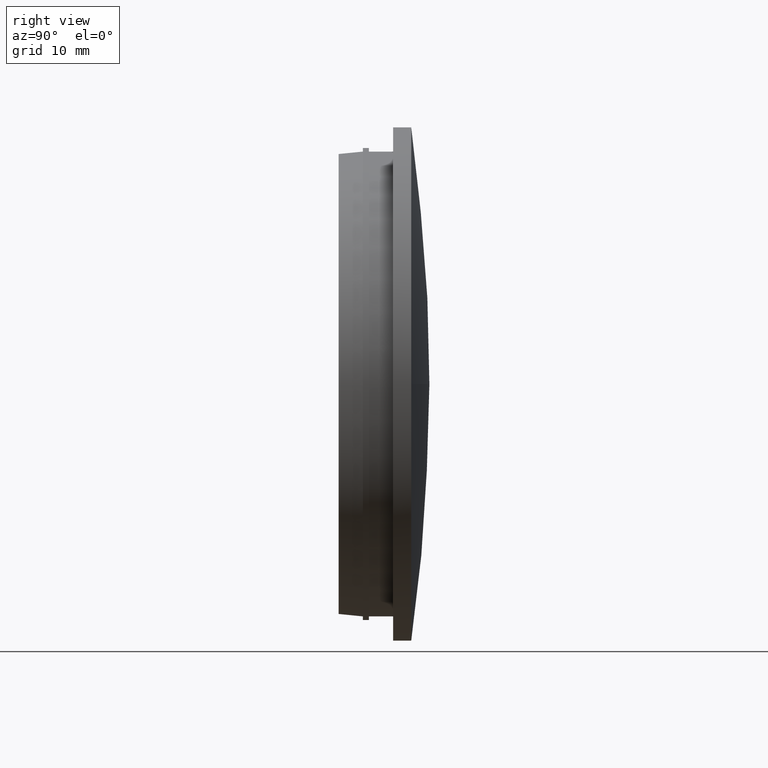
[diagram: clean part render]
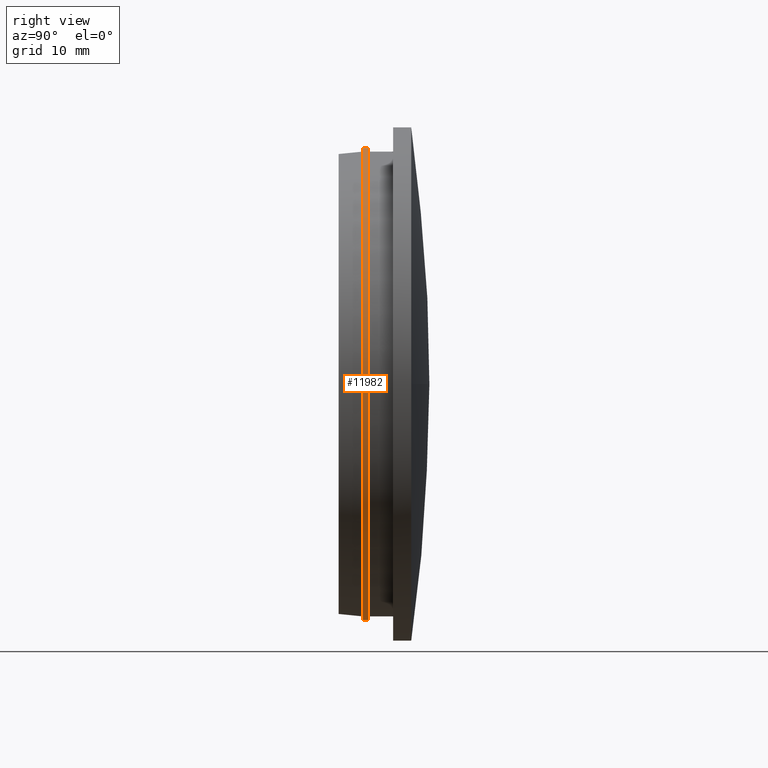
[diagram: same view with one face highlighted and labeled with its STEP entity id]
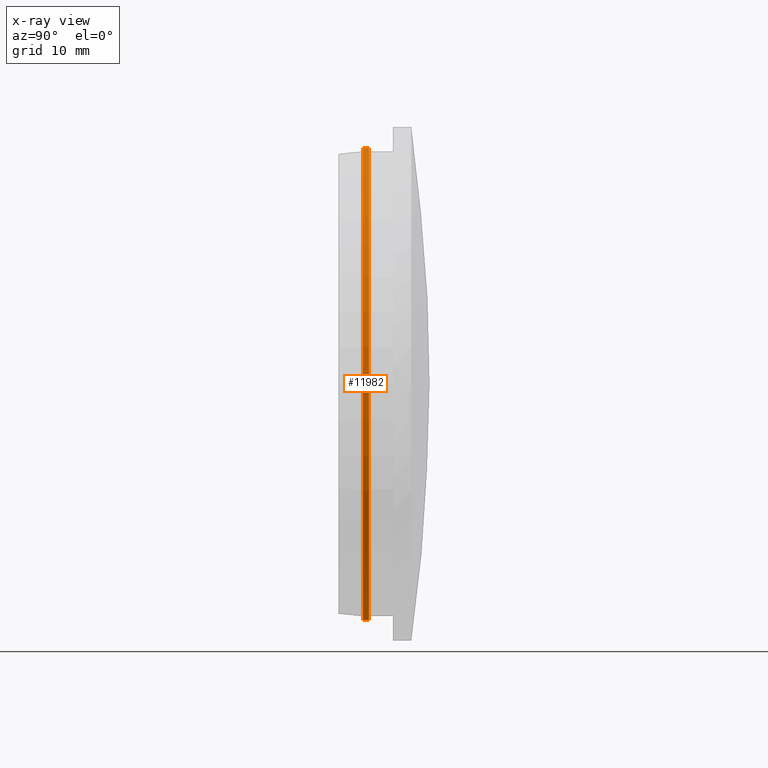
[diagram: x-ray of the same camera — body ghosted, the highlighted face saturated]
A machine part, right view. The second image highlights one B-rep face of the part: STEP entity #11982.
The next image is the same camera in x-ray: the body ghosted, the highlighted face saturated — about 0% of this face is hidden behind the body in this view.
In plain terms, the highlighted cylindrical surface (partial cylindrical patch) has radius 19.5 mm, axis along (-0, -1, -0).
Its self-contained STEP definition (entity closure, byte-faithful):
#157 = ORIENTED_EDGE ( 'NONE', *, *, #283, .F. ) ;
#215 = ORIENTED_EDGE ( 'NONE', *, *, #10236, .F. ) ;
#283 = EDGE_CURVE ( 'NONE', #9597, #2731, #4128, .T. ) ;
#977 = DIRECTION ( 'NONE',  ( -0.0000000000000000000, -1.000000000000000000, -0.0000000000000000000 ) ) ;
#979 = CARTESIAN_POINT ( 'NONE',  ( 2.388061258337338900E-015, 2.000000000000000000, 19.50000000000000000 ) ) ;
#987 = CARTESIAN_POINT ( 'NONE',  ( 0.0000000000000000000, 2.500000000000000000, 0.0000000000000000000 ) ) ;
#1764 = DIRECTION ( 'NONE',  ( -0.0000000000000000000, -1.000000000000000000, -0.0000000000000000000 ) ) ;
#2463 = CARTESIAN_POINT ( 'NONE',  ( 0.0000000000000000000, 2.000000000000000000, 0.0000000000000000000 ) ) ;
#2540 = AXIS2_PLACEMENT_3D ( 'NONE', #2463, #5404, #10222 ) ;
#2731 = VERTEX_POINT ( 'NONE', #10666 ) ;
#3301 = CARTESIAN_POINT ( 'NONE',  ( 2.388061258337338900E-015, 2.500000000000000000, 19.50000000000000000 ) ) ;
#3365 = CARTESIAN_POINT ( 'NONE',  ( 2.388061258337338900E-015, 2.500000000000000000, 19.50000000000000000 ) ) ;
#3379 = DIRECTION ( 'NONE',  ( -0.0000000000000000000, -1.000000000000000000, -0.0000000000000000000 ) ) ;
#3786 = FACE_OUTER_BOUND ( 'NONE', #10557, .T. ) ;
#3994 = LINE ( 'NONE', #3301, #9077 ) ;
#4128 = CIRCLE ( 'NONE', #6161, 19.50000000000000000 ) ;
#4934 = DIRECTION ( 'NONE',  ( 0.0000000000000000000, 1.000000000000000000, 0.0000000000000000000 ) ) ;
#5350 = EDGE_CURVE ( 'NONE', #8261, #7852, #8320, .T. ) ;
#5404 = DIRECTION ( 'NONE',  ( 0.0000000000000000000, 1.000000000000000000, 0.0000000000000000000 ) ) ;
#5501 = EDGE_CURVE ( 'NONE', #9597, #8261, #3994, .T. ) ;
#6161 = AXIS2_PLACEMENT_3D ( 'NONE', #987, #4934, #12801 ) ;
#6318 = AXIS2_PLACEMENT_3D ( 'NONE', #8543, #1764, #10804 ) ;
#7359 = ORIENTED_EDGE ( 'NONE', *, *, #5501, .T. ) ;
#7455 = CYLINDRICAL_SURFACE ( 'NONE', #6318, 19.50000000000000000 ) ;
#7847 = ORIENTED_EDGE ( 'NONE', *, *, #5350, .T. ) ;
#7852 = VERTEX_POINT ( 'NONE', #11252 ) ;
#8261 = VERTEX_POINT ( 'NONE', #979 ) ;
#8280 = LINE ( 'NONE', #8753, #12323 ) ;
#8320 = CIRCLE ( 'NONE', #2540, 19.50000000000000000 ) ;
#8543 = CARTESIAN_POINT ( 'NONE',  ( 0.0000000000000000000, 2.500000000000000000, 0.0000000000000000000 ) ) ;
#8753 = CARTESIAN_POINT ( 'NONE',  ( 0.0000000000000000000, 2.500000000000000000, -19.50000000000000000 ) ) ;
#9077 = VECTOR ( 'NONE', #3379, 1000.000000000000000 ) ;
#9597 = VERTEX_POINT ( 'NONE', #3365 ) ;
#10222 = DIRECTION ( 'NONE',  ( 0.0000000000000000000, 0.0000000000000000000, 1.000000000000000000 ) ) ;
#10236 = EDGE_CURVE ( 'NONE', #2731, #7852, #8280, .T. ) ;
#10557 = EDGE_LOOP ( 'NONE', ( #157, #7359, #7847, #215 ) ) ;
#10666 = CARTESIAN_POINT ( 'NONE',  ( 0.0000000000000000000, 2.500000000000000000, -19.50000000000000000 ) ) ;
#10804 = DIRECTION ( 'NONE',  ( 0.0000000000000000000, 0.0000000000000000000, -1.000000000000000000 ) ) ;
#11252 = CARTESIAN_POINT ( 'NONE',  ( 0.0000000000000000000, 2.000000000000000000, -19.50000000000000000 ) ) ;
#11982 = ADVANCED_FACE ( 'NONE', ( #3786 ), #7455, .T. ) ;
#12323 = VECTOR ( 'NONE', #977, 1000.000000000000000 ) ;
#12801 = DIRECTION ( 'NONE',  ( 0.0000000000000000000, 0.0000000000000000000, 1.000000000000000000 ) ) ;